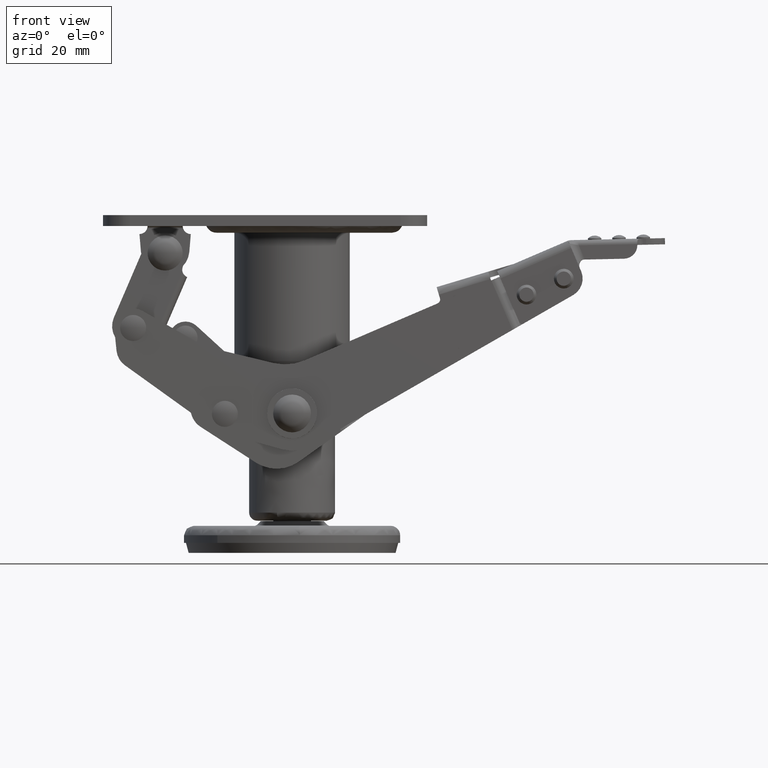
[diagram: clean part render]
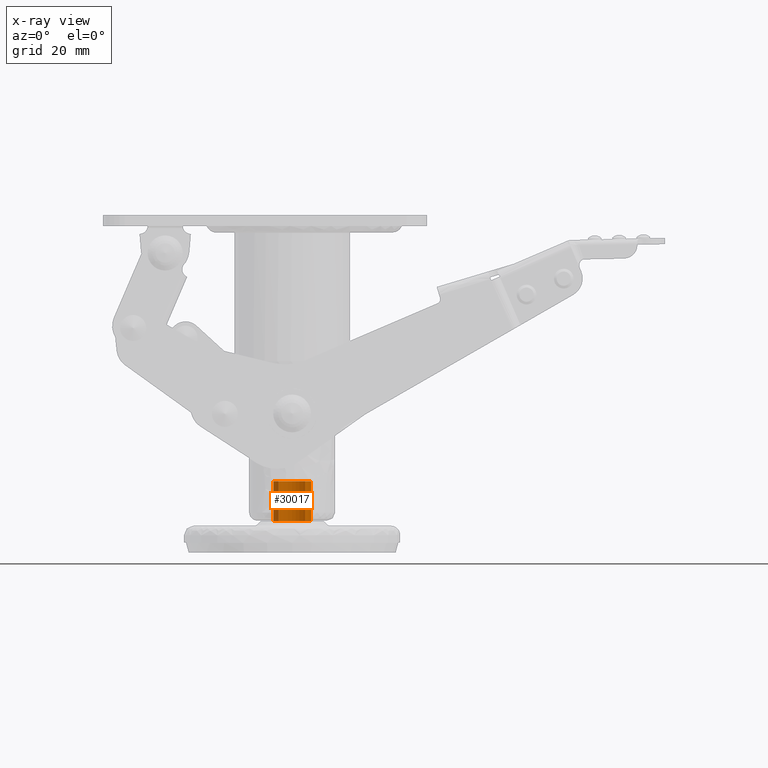
[diagram: x-ray — body ghosted, one internal face saturated and labeled with its STEP entity id]
A machine part, front view, then the same camera in x-ray: the body is ghosted and one INTERNAL B-rep face — a face not visible from any outside direction — is saturated and labeled: STEP entity #30017.
In plain terms, the highlighted face is a freeform B-spline surface patch.
Its self-contained STEP definition (entity closure, byte-faithful):
#29871=CARTESIAN_POINT('',(-4.882023946732543,-5.016556805571924,-98.113592041666593));
#29872=CARTESIAN_POINT('',(-5.025595647249436,-4.876835377675787,-98.113592041666593));
#29873=CARTESIAN_POINT('',(-5.160941357670867,-4.729131453309620,-98.113592041666578));
#29874=CARTESIAN_POINT('',(-9.890072810980486,0.431809904361247,-98.113592041666578));
#29875=CARTESIAN_POINT('',(-4.729131453309620,5.160941357670867,-98.113592041666578));
#29876=CARTESIAN_POINT('',(0.431809904361247,9.890072810980486,-98.113592041666578));
#29877=CARTESIAN_POINT('',(5.160941357670867,4.729131453309620,-98.113592041666578));
#29878=CARTESIAN_POINT('',(9.890072810980486,-0.431809904361247,-98.113592041666578));
#29879=CARTESIAN_POINT('',(4.729131453309620,-5.160941357670867,-98.113592041666578));
#29880=CARTESIAN_POINT('',(-4.882023946732543,-5.016556805571924,-113.679646788541590));
#29881=CARTESIAN_POINT('',(-5.025595647249436,-4.876835377675787,-113.679646788541590));
#29882=CARTESIAN_POINT('',(-5.160941357670867,-4.729131453309620,-113.679646788541600));
#29883=CARTESIAN_POINT('',(-9.890072810980486,0.431809904361247,-113.679646788541600));
#29884=CARTESIAN_POINT('',(-4.729131453309620,5.160941357670867,-113.679646788541600));
#29885=CARTESIAN_POINT('',(0.431809904361247,9.890072810980486,-113.679646788541600));
#29886=CARTESIAN_POINT('',(5.160941357670867,4.729131453309620,-113.679646788541600));
#29887=CARTESIAN_POINT('',(9.890072810980486,-0.431809904361247,-113.679646788541600));
#29888=CARTESIAN_POINT('',(4.729131453309620,-5.160941357670867,-113.679646788541600));
#29896=(BOUNDED_SURFACE()B_SPLINE_SURFACE(2,1,((#29871,#29880),(#29872,#29881),(#29873,#29882),(#29874,#29883),(#29875,#29884),(#29876,#29885),(#29877,#29886),(#29878,#29887),(#29879,#29888)),.UNSPECIFIED.,.F.,.F.,.U.)B_SPLINE_SURFACE_WITH_KNOTS((3,2,2,2,3),(2,2),(0.0,0.463919189857867,12.061898936304530,23.659878682751181,35.257858429197839),(0.0,15.566054746875031),.UNSPECIFIED.)GEOMETRIC_REPRESENTATION_ITEM()RATIONAL_B_SPLINE_SURFACE(((0.977505800795127,0.977505800795127),(0.988284271247462,0.988284271247462),(1.0,1.0),(0.707106781186548,0.707106781186548),(1.0,1.0),(0.707106781186548,0.707106781186548),(1.0,1.0),(0.707106781186548,0.707106781186548),(1.0,1.0)))REPRESENTATION_ITEM('')SURFACE());
#29897=CARTESIAN_POINT('',(-7.0,0.0,-98.483991916666596));
#29898=VERTEX_POINT('',#29897);
#29899=CARTESIAN_POINT('',(-4.882023322230655,-5.016556432669173,-98.483991916673830));
#29900=VERTEX_POINT('',#29899);
#29901=CARTESIAN_POINT('',(-7.0,0.0,-98.483991916666596));
#29902=CARTESIAN_POINT('',(-7.000489983186172,-0.757459673614132,-98.483991916667634));
#29903=CARTESIAN_POINT('',(-6.804134292412065,-1.951429309334546,-98.483991916669524));
#29904=CARTESIAN_POINT('',(-6.043613367725367,-3.662573240338146,-98.483991916671812));
#29905=CARTESIAN_POINT('',(-5.362388397637532,-4.549461317253448,-98.483991916673034));
#29906=CARTESIAN_POINT('',(-4.882023322230655,-5.016556432669173,-98.483991916673830));
#29907=B_SPLINE_CURVE_WITH_KNOTS('',3,(#29901,#29902,#29903,#29904,#29905,#29906),.UNSPECIFIED.,.F.,.U.,(4,1,1,4),(0.000000068487926,2.272163417350295,3.582982255100508,5.592955393740660),.UNSPECIFIED.);
#29908=EDGE_CURVE('',#29898,#29900,#29907,.T.);
#29909=ORIENTED_EDGE('',*,*,#29908,.F.);
#29910=CARTESIAN_POINT('',(-0.000002812193226,6.999999999999434,-98.483991916666582));
#29911=VERTEX_POINT('',#29910);
#29912=CARTESIAN_POINT('',(-0.000002812193226,6.999999999999434,-98.483991916666582));
#29913=CARTESIAN_POINT('',(-0.486779458585894,7.000060767023284,-98.483991916666596));
#29914=CARTESIAN_POINT('',(-1.546253151138571,6.889111380600983,-98.483991916666753));
#29915=CARTESIAN_POINT('',(-2.992155020472816,6.391740870175791,-98.483991916666440));
#29916=CARTESIAN_POINT('',(-4.339419915609942,5.561524210431280,-98.483991916666724));
#29917=CARTESIAN_POINT('',(-5.294225128210809,4.641240757938574,-98.483991916666582));
#29918=CARTESIAN_POINT('',(-6.060951205304930,3.566517256797054,-98.483991916666511));
#29919=CARTESIAN_POINT('',(-6.767879446597752,2.118561790721578,-98.483991916666753));
#29920=CARTESIAN_POINT('',(-7.000703410983828,0.830501989122651,-98.483991916666540));
#29921=CARTESIAN_POINT('',(-7.0,0.0,-98.483991916666596));
#29922=B_SPLINE_CURVE_WITH_KNOTS('',3,(#29912,#29913,#29914,#29915,#29916,#29917,#29918,#29919,#29920,#29921),.UNSPECIFIED.,.F.,.U.,(4,1,1,1,1,1,1,4),(0.000000262627838,1.460339378658050,3.178432860497926,4.552912398879576,6.184984691453929,7.129950582899936,8.504445881018574,10.995641695141741),.UNSPECIFIED.);
#29923=EDGE_CURVE('',#29911,#29898,#29922,.T.);
#29924=ORIENTED_EDGE('',*,*,#29923,.F.);
#29925=CARTESIAN_POINT('',(7.0,0.0,-98.483991916666596));
#29926=VERTEX_POINT('',#29925);
#29927=CARTESIAN_POINT('',(7.0,0.0,-98.483991916666596));
#29928=CARTESIAN_POINT('',(7.000076012688685,0.486781426738940,-98.483991916666412));
#29929=CARTESIAN_POINT('',(6.907014881662939,1.374412563592805,-98.483991916666881));
#29930=CARTESIAN_POINT('',(6.498263226013574,2.722068092200506,-98.483991916666454));
#29931=CARTESIAN_POINT('',(5.751475945611801,4.119592570626478,-98.483991916666739));
#29932=CARTESIAN_POINT('',(4.597895852856755,5.376822780170890,-98.483991916666440));
#29933=CARTESIAN_POINT('',(3.221276534745655,6.272181324127184,-98.483991916666852));
#29934=CARTESIAN_POINT('',(1.717948290123067,6.852051400785476,-98.483991916666326));
#29935=CARTESIAN_POINT('',(0.629974224178902,7.000227833053007,-98.483991916667037));
#29936=CARTESIAN_POINT('',(-0.000002812193226,6.999999999999434,-98.483991916666582));
#29937=B_SPLINE_CURVE_WITH_KNOTS('',3,(#29927,#29928,#29929,#29930,#29931,#29932,#29933,#29934,#29935,#29936),.UNSPECIFIED.,.F.,.U.,(4,1,1,1,1,1,1,4),(0.000000261654909,1.460339799279272,2.663006569166402,4.209313152801080,6.184986476269569,7.731300474394589,9.105777876613985,10.995644865158789),.UNSPECIFIED.);
#29938=EDGE_CURVE('',#29926,#29911,#29937,.T.);
#29939=ORIENTED_EDGE('',*,*,#29938,.F.);
#29940=CARTESIAN_POINT('',(4.729132087614755,-5.160941726382287,-98.483991916662077));
#29941=VERTEX_POINT('',#29940);
#29942=CARTESIAN_POINT('',(4.729132087614755,-5.160941726382287,-98.483991916662077));
#29943=CARTESIAN_POINT('',(5.085705472083407,-4.834260912947264,-98.483991916662347));
#29944=CARTESIAN_POINT('',(5.811481774430094,-4.015719465867691,-98.483991916663143));
#29945=CARTESIAN_POINT('',(6.733655423021444,-2.296745209872019,-98.483991916664294));
#29946=CARTESIAN_POINT('',(7.000617348028216,-0.846384456462216,-98.483991916666668));
#29947=CARTESIAN_POINT('',(7.0,0.0,-98.483991916666596));
#29948=B_SPLINE_CURVE_WITH_KNOTS('',3,(#29942,#29943,#29944,#29945,#29946,#29947),.UNSPECIFIED.,.F.,.U.,(4,1,1,4),(0.000000082314338,1.450815163061781,3.264306876374267,5.803260405311897),.UNSPECIFIED.);
#29949=EDGE_CURVE('',#29941,#29926,#29948,.T.);
#29950=ORIENTED_EDGE('',*,*,#29949,.F.);
#29951=CARTESIAN_POINT('',(4.729132085631548,-5.160941728199546,-113.299986916666600));
#29952=VERTEX_POINT('',#29951);
#29953=CARTESIAN_POINT('',(4.729132087614755,-5.160941726382287,-98.483991916662077));
#29954=CARTESIAN_POINT('',(4.729132085631548,-5.160941728199546,-113.299986916666600));
#29955=QUASI_UNIFORM_CURVE('',1,(#29953,#29954),.UNSPECIFIED.,.F.,.U.);
#29956=EDGE_CURVE('',#29941,#29952,#29955,.T.);
#29957=ORIENTED_EDGE('',*,*,#29956,.T.);
#29958=CARTESIAN_POINT('',(7.0,0.0,-113.299986916666600));
#29959=VERTEX_POINT('',#29958);
#29960=CARTESIAN_POINT('',(4.729132085631548,-5.160941728199546,-113.299986916666600));
#29961=CARTESIAN_POINT('',(5.018810539393717,-4.895485538000971,-113.299986916666700));
#29962=CARTESIAN_POINT('',(5.759203655227265,-4.092793416706359,-113.299986916666300));
#29963=CARTESIAN_POINT('',(6.717039248116882,-2.387496631898945,-113.299986916667000));
#29964=CARTESIAN_POINT('',(7.000653848197236,-0.846355404563008,-113.299986916666400));
#29965=CARTESIAN_POINT('',(7.0,0.0,-113.299986916666600));
#29966=B_SPLINE_CURVE_WITH_KNOTS('',3,(#29960,#29961,#29962,#29963,#29964,#29965),.UNSPECIFIED.,.F.,.U.,(4,1,1,4),(0.000000082313607,1.178779984639388,3.264306877887147,5.803260408001856),.UNSPECIFIED.);
#29967=EDGE_CURVE('',#29952,#29959,#29966,.T.);
#29968=ORIENTED_EDGE('',*,*,#29967,.T.);
#29969=CARTESIAN_POINT('',(-0.000002812193274,6.999999999999435,-113.299986916666600));
#29970=VERTEX_POINT('',#29969);
#29971=CARTESIAN_POINT('',(7.0,0.0,-113.299986916666600));
#29972=CARTESIAN_POINT('',(7.000055615593323,0.486775862481849,-113.299986916666800));
#29973=CARTESIAN_POINT('',(6.889124463868046,1.546252630737997,-113.299986916666700));
#29974=CARTESIAN_POINT('',(6.391744097503921,2.992162403329683,-113.299986916666000));
#29975=CARTESIAN_POINT('',(5.621847324037778,4.241390133837415,-113.299986916667510));
#29976=CARTESIAN_POINT('',(4.669229714233605,5.279577956456795,-113.299986916666500));
#29977=CARTESIAN_POINT('',(3.315133886873672,6.258758616177076,-113.299986916664100));
#29978=CARTESIAN_POINT('',(1.689489515997275,6.874334237415180,-113.299986916671400));
#29979=CARTESIAN_POINT('',(0.486751766411671,7.000013879071957,-113.299986916662700));
#29980=CARTESIAN_POINT('',(-0.000002812193274,6.999999999999435,-113.299986916666600));
#29981=B_SPLINE_CURVE_WITH_KNOTS('',3,(#29971,#29972,#29973,#29974,#29975,#29976,#29977,#29978,#29979,#29980),.UNSPECIFIED.,.F.,.U.,(4,1,1,1,1,1,1,4),(0.000000261654840,1.460339799279227,3.178433775677397,4.552913712512800,5.841383710164119,7.387689565767180,9.535324637847980,10.995644865158811),.UNSPECIFIED.);
#29982=EDGE_CURVE('',#29959,#29970,#29981,.T.);
#29983=ORIENTED_EDGE('',*,*,#29982,.T.);
#29984=CARTESIAN_POINT('',(-7.0,0.0,-113.299986916666600));
#29985=VERTEX_POINT('',#29984);
#29986=CARTESIAN_POINT('',(-0.000002812193274,6.999999999999435,-113.299986916666600));
#29987=CARTESIAN_POINT('',(-0.744554775514140,7.000392562631816,-113.299986916666700));
#29988=CARTESIAN_POINT('',(-1.889634777422089,6.815487782305968,-113.299986916666600));
#29989=CARTESIAN_POINT('',(-3.421767376460684,6.158613453726626,-113.299986916666600));
#29990=CARTESIAN_POINT('',(-4.514509719116322,5.408923127335845,-113.299986916666600));
#29991=CARTESIAN_POINT('',(-5.518065227088249,4.380387995680398,-113.299986916666500));
#29992=CARTESIAN_POINT('',(-6.350860807140420,3.100592720515423,-113.299986916667190));
#29993=CARTESIAN_POINT('',(-6.886163287361272,1.574887119899356,-113.299986916666100));
#29994=CARTESIAN_POINT('',(-7.000047325713838,0.486767641224953,-113.299986916666800));
#29995=CARTESIAN_POINT('',(-7.0,0.0,-113.299986916666600));
#29996=B_SPLINE_CURVE_WITH_KNOTS('',3,(#29986,#29987,#29988,#29989,#29990,#29991,#29992,#29993,#29994,#29995),.UNSPECIFIED.,.F.,.U.,(4,1,1,1,1,1,1,4),(0.000000262627164,2.233486619312970,3.436156779504381,4.982464103184773,6.184984691453724,7.731298243989541,9.535321887605809,10.995641695141710),.UNSPECIFIED.);
#29997=EDGE_CURVE('',#29970,#29985,#29996,.T.);
#29998=ORIENTED_EDGE('',*,*,#29997,.T.);
#29999=CARTESIAN_POINT('',(-4.882023323828046,-5.016556431114637,-113.299986916666600));
#30000=VERTEX_POINT('',#29999);
#30001=CARTESIAN_POINT('',(-7.0,0.0,-113.299986916666600));
#30002=CARTESIAN_POINT('',(-7.000128525885141,-0.553480263578937,-113.299986916666800));
#30003=CARTESIAN_POINT('',(-6.874962062716922,-1.602075683588527,-113.299986916666400));
#30004=CARTESIAN_POINT('',(-6.243989747554126,-3.367574174044702,-113.299986916667090));
#30005=CARTESIAN_POINT('',(-5.467093372424461,-4.448104340003387,-113.299986916665600));
#30006=CARTESIAN_POINT('',(-4.882023323828046,-5.016556431114637,-113.299986916666600));
#30007=B_SPLINE_CURVE_WITH_KNOTS('',3,(#30001,#30002,#30003,#30004,#30005,#30006),.UNSPECIFIED.,.F.,.U.,(4,1,1,4),(0.000000068488141,1.660415249536797,3.146013192062029,5.592955391511670),.UNSPECIFIED.);
#30008=EDGE_CURVE('',#29985,#30000,#30007,.T.);
#30009=ORIENTED_EDGE('',*,*,#30008,.T.);
#30010=CARTESIAN_POINT('',(-4.882023322230655,-5.016556432669173,-98.483991916673830));
#30011=CARTESIAN_POINT('',(-4.882023323828046,-5.016556431114637,-113.299986916666600));
#30012=QUASI_UNIFORM_CURVE('',1,(#30010,#30011),.UNSPECIFIED.,.F.,.U.);
#30013=EDGE_CURVE('',#29900,#30000,#30012,.T.);
#30014=ORIENTED_EDGE('',*,*,#30013,.F.);
#30015=EDGE_LOOP('',(#29909,#29924,#29939,#29950,#29957,#29968,#29983,#29998,#30009,#30014));
#30016=FACE_OUTER_BOUND('',#30015,.T.);
#30017=ADVANCED_FACE('',(#30016),#29896,.T.);